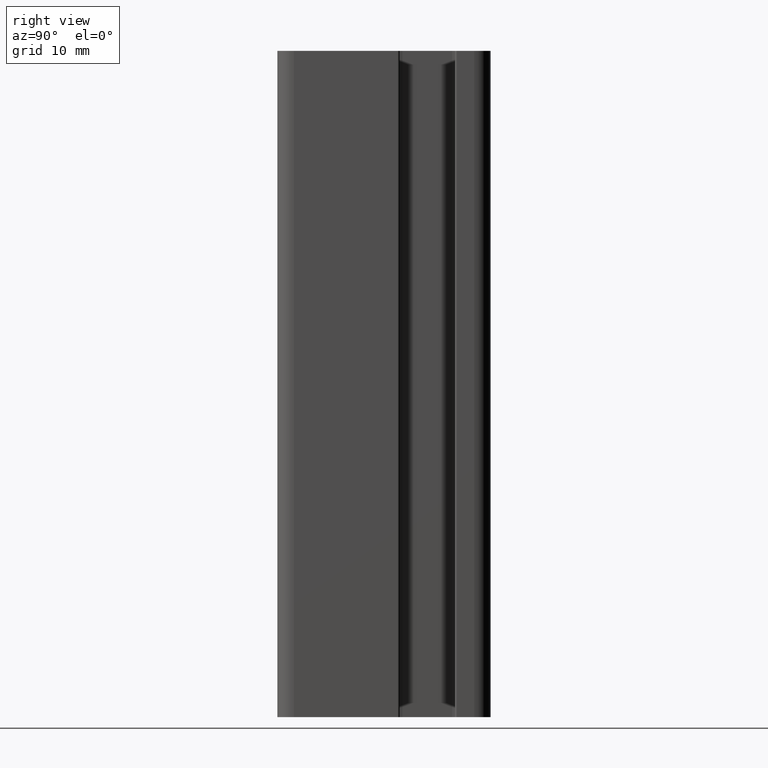
[diagram: clean part render]
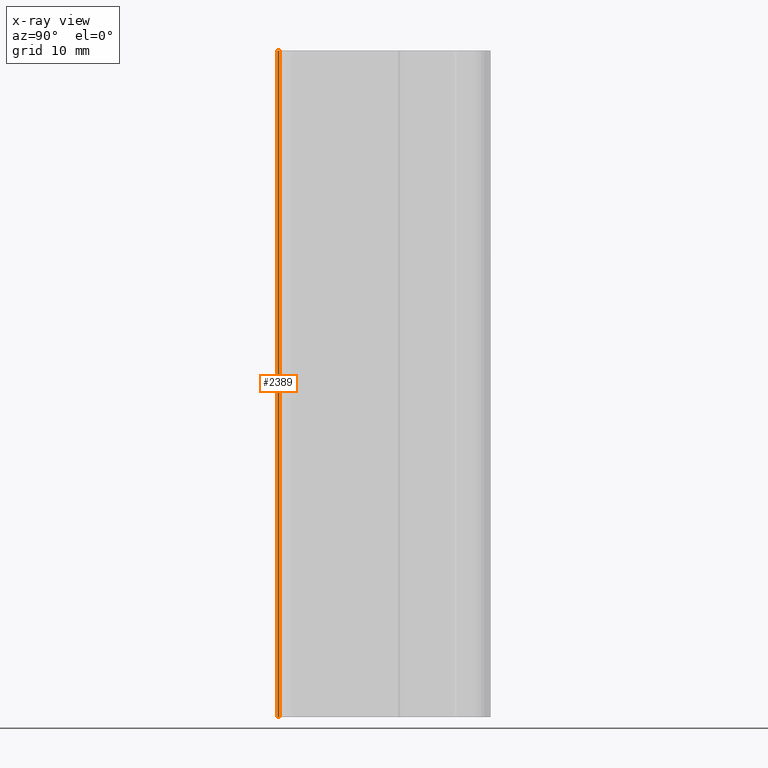
[diagram: x-ray — body ghosted, one internal face saturated and labeled with its STEP entity id]
A machine part, right view, then the same camera in x-ray: the body is ghosted and one INTERNAL B-rep face — a face not visible from any outside direction — is saturated and labeled: STEP entity #2389.
In plain terms, the highlighted cylindrical surface (edge-blend (fillet) strip) has radius 0.3 mm, axis along (0, 0, 1).
Its self-contained STEP definition (entity closure, byte-faithful):
#133=CIRCLE('',#2628,0.3);
#134=CIRCLE('',#2629,0.3);
#212=CYLINDRICAL_SURFACE('',#2627,0.3);
#319=FACE_OUTER_BOUND('',#441,.T.);
#441=EDGE_LOOP('',(#1903,#1904,#1905,#1906));
#647=LINE('',#4005,#871);
#648=LINE('',#4008,#872);
#871=VECTOR('',#3277,100.);
#872=VECTOR('',#3280,100.);
#1115=VERTEX_POINT('',#4001);
#1116=VERTEX_POINT('',#4002);
#1117=VERTEX_POINT('',#4004);
#1118=VERTEX_POINT('',#4006);
#1449=EDGE_CURVE('',#1115,#1116,#133,.T.);
#1450=EDGE_CURVE('',#1117,#1115,#647,.T.);
#1451=EDGE_CURVE('',#1118,#1117,#134,.T.);
#1452=EDGE_CURVE('',#1116,#1118,#648,.T.);
#1903=ORIENTED_EDGE('',*,*,#1449,.F.);
#1904=ORIENTED_EDGE('',*,*,#1450,.F.);
#1905=ORIENTED_EDGE('',*,*,#1451,.F.);
#1906=ORIENTED_EDGE('',*,*,#1452,.F.);
#2389=ADVANCED_FACE('',(#319),#212,.T.);
#2627=AXIS2_PLACEMENT_3D('',#4000,#3273,#3274);
#2628=AXIS2_PLACEMENT_3D('',#4003,#3275,#3276);
#2629=AXIS2_PLACEMENT_3D('',#4007,#3278,#3279);
#3273=DIRECTION('center_axis',(0.,0.,1.));
#3274=DIRECTION('ref_axis',(1.,-1.48029736616689E-14,0.));
#3275=DIRECTION('center_axis',(0.,0.,1.));
#3276=DIRECTION('ref_axis',(1.,-1.48029736616689E-14,0.));
#3277=DIRECTION('',(0.,0.,1.));
#3278=DIRECTION('center_axis',(0.,0.,-1.));
#3279=DIRECTION('ref_axis',(1.,-1.48029736616689E-14,0.));
#3280=DIRECTION('',(0.,0.,-1.));
#4000=CARTESIAN_POINT('Origin',(4.45000223168671,-22.2,0.));
#4001=CARTESIAN_POINT('',(4.15000223168672,-22.2,100.));
#4002=CARTESIAN_POINT('',(4.45000223168672,-22.5,100.));
#4003=CARTESIAN_POINT('Origin',(4.45000223168671,-22.2,100.));
#4004=CARTESIAN_POINT('',(4.15000223168672,-22.2,0.));
#4005=CARTESIAN_POINT('',(4.15000223168672,-22.2,0.));
#4006=CARTESIAN_POINT('',(4.45000223168672,-22.5,0.));
#4007=CARTESIAN_POINT('Origin',(4.45000223168671,-22.2,0.));
#4008=CARTESIAN_POINT('',(4.45000223168671,-22.5,0.));